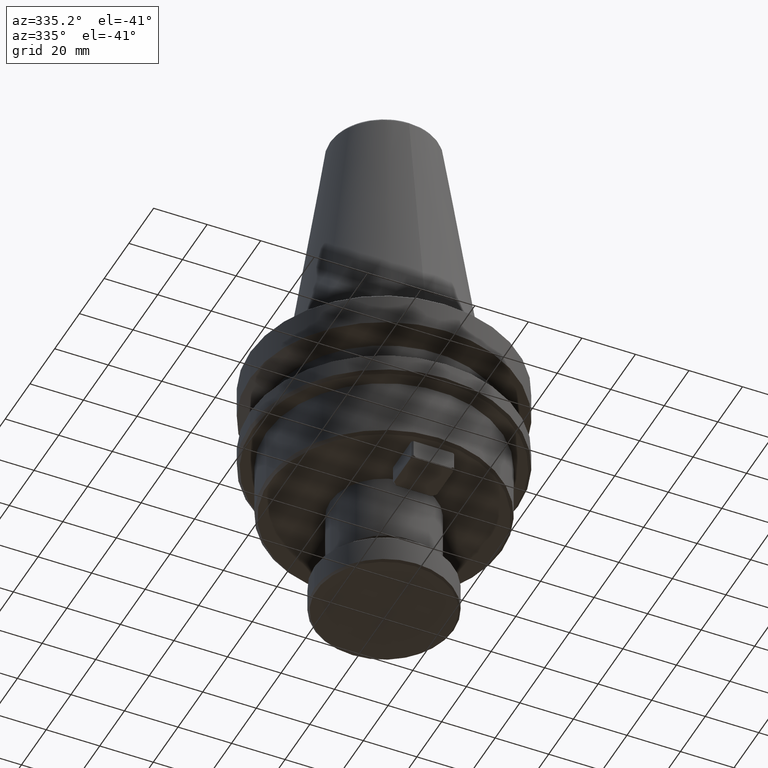
[diagram: clean part render]
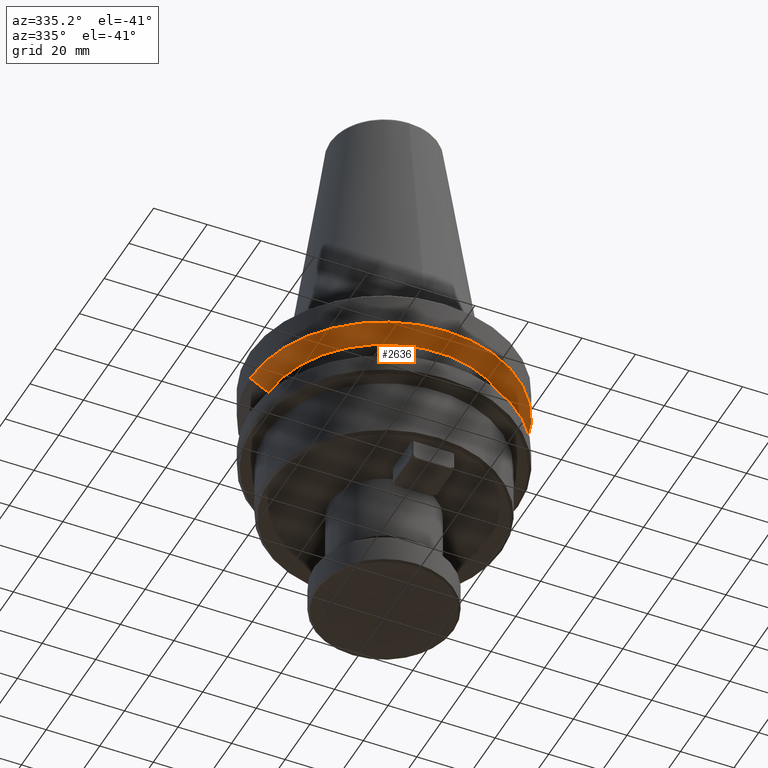
[diagram: same view with one face highlighted and labeled with its STEP entity id]
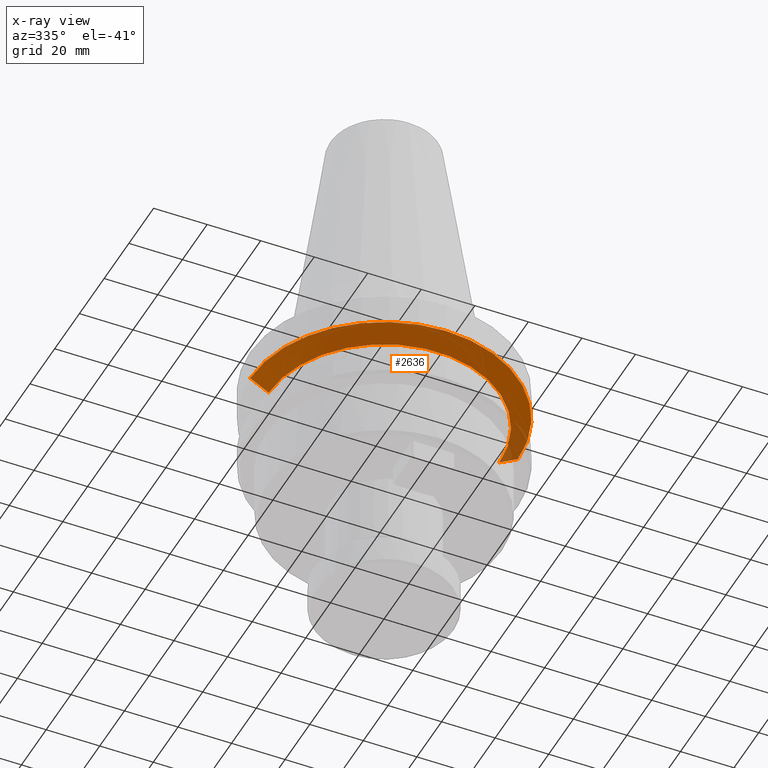
[diagram: x-ray of the same camera — body ghosted, the highlighted face saturated]
A machine part, auxiliary view. The second image highlights one B-rep face of the part: STEP entity #2636.
The next image is the same camera in x-ray: the body ghosted, the highlighted face saturated — about 7% of this face is hidden behind the body in this view.
In plain terms, the highlighted conical surface has half-angle 60 deg.
Its self-contained STEP definition (entity closure, byte-faithful):
#95 = VECTOR ( 'NONE', #300, 1000.000000000000000 ) ;
#141 = CONICAL_SURFACE ( 'NONE', #2784, 50.00000000000000700, 1.047197551196598100 ) ;
#183 = EDGE_CURVE ( 'NONE', #1902, #1669, #277, .T. ) ;
#249 = FACE_OUTER_BOUND ( 'NONE', #920, .T. ) ;
#277 = CIRCLE ( 'NONE', #2584, 50.00000000000000000 ) ;
#300 = DIRECTION ( 'NONE',  ( -0.8660254037844388200, 1.060575238724907200E-016, 0.4999999999999997200 ) ) ;
#310 = LINE ( 'NONE', #1080, #2131 ) ;
#316 = CARTESIAN_POINT ( 'NONE',  ( -50.00000000000000700, 6.123233995736766900E-015, -15.70022000322675000 ) ) ;
#649 = VERTEX_POINT ( 'NONE', #712 ) ;
#712 = CARTESIAN_POINT ( 'NONE',  ( -43.07217782649103600, 5.699027233244276000E-015, -19.70000000000001000 ) ) ;
#882 = DIRECTION ( 'NONE',  ( 1.000000000000000000, 0.0000000000000000000, 0.0000000000000000000 ) ) ;
#883 = DIRECTION ( 'NONE',  ( 0.0000000000000000000, -0.0000000000000000000, 1.000000000000000000 ) ) ;
#886 = CARTESIAN_POINT ( 'NONE',  ( 0.0000000000000000000, 0.0000000000000000000, -19.70000000000001000 ) ) ;
#920 = EDGE_LOOP ( 'NONE', ( #1223, #1553, #1009, #1146 ) ) ;
#989 = EDGE_CURVE ( 'NONE', #649, #1902, #1287, .T. ) ;
#1009 = ORIENTED_EDGE ( 'NONE', *, *, #2560, .T. ) ;
#1022 = AXIS2_PLACEMENT_3D ( 'NONE', #886, #883, #882 ) ;
#1044 = DIRECTION ( 'NONE',  ( 0.8660254037844388200, 0.0000000000000000000, 0.4999999999999997200 ) ) ;
#1080 = CARTESIAN_POINT ( 'NONE',  ( 50.00000000000000700, 0.0000000000000000000, -15.70022000322675000 ) ) ;
#1146 = ORIENTED_EDGE ( 'NONE', *, *, #183, .F. ) ;
#1203 = CARTESIAN_POINT ( 'NONE',  ( 43.07217782649103600, 0.0000000000000000000, -19.70000000000001000 ) ) ;
#1223 = ORIENTED_EDGE ( 'NONE', *, *, #989, .F. ) ;
#1287 = LINE ( 'NONE', #316, #95 ) ;
#1379 = DIRECTION ( 'NONE',  ( 1.000000000000000000, 0.0000000000000000000, 0.0000000000000000000 ) ) ;
#1553 = ORIENTED_EDGE ( 'NONE', *, *, #2756, .T. ) ;
#1664 = CARTESIAN_POINT ( 'NONE',  ( 0.0000000000000000000, 0.0000000000000000000, -15.70022000322675000 ) ) ;
#1669 = VERTEX_POINT ( 'NONE', #2519 ) ;
#1715 = CARTESIAN_POINT ( 'NONE',  ( 0.0000000000000000000, 0.0000000000000000000, -15.70022000322675400 ) ) ;
#1805 = DIRECTION ( 'NONE',  ( 0.0000000000000000000, -0.0000000000000000000, 1.000000000000000000 ) ) ;
#1902 = VERTEX_POINT ( 'NONE', #1983 ) ;
#1983 = CARTESIAN_POINT ( 'NONE',  ( -50.00000000000000000, 6.123233995736766100E-015, -15.70022000322675400 ) ) ;
#2131 = VECTOR ( 'NONE', #1044, 1000.000000000000000 ) ;
#2382 = VERTEX_POINT ( 'NONE', #1203 ) ;
#2519 = CARTESIAN_POINT ( 'NONE',  ( 50.00000000000000000, 0.0000000000000000000, -15.70022000322675400 ) ) ;
#2560 = EDGE_CURVE ( 'NONE', #2382, #1669, #310, .T. ) ;
#2584 = AXIS2_PLACEMENT_3D ( 'NONE', #1715, #2587, #2625 ) ;
#2587 = DIRECTION ( 'NONE',  ( 0.0000000000000000000, 0.0000000000000000000, 1.000000000000000000 ) ) ;
#2625 = DIRECTION ( 'NONE',  ( 1.000000000000000000, 0.0000000000000000000, 0.0000000000000000000 ) ) ;
#2636 = ADVANCED_FACE ( 'NONE', ( #249 ), #141, .T. ) ;
#2727 = CIRCLE ( 'NONE', #1022, 43.07217782649103600 ) ;
#2756 = EDGE_CURVE ( 'NONE', #649, #2382, #2727, .T. ) ;
#2784 = AXIS2_PLACEMENT_3D ( 'NONE', #1664, #1805, #1379 ) ;